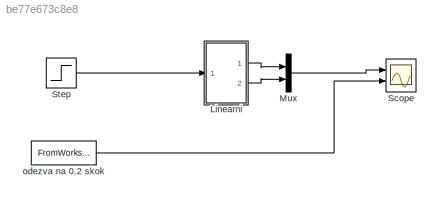
MODEL slx_be77e673c8e8
KIND model
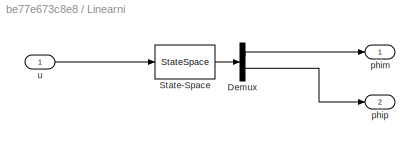
BLOCK [SubSystem] Linearni
  FunctionWithSeparateData = off
  MaskHideContents = off
  MinAlgLoopOccurrences = off
  Opaque = off
  Ports = [1, 2]
  PropExecContextOutsideSubsystem = off
  RTWSystemCode = Auto
  RequestExecContextInheritance = off
BLOCK [Demux] Linearni/Demux
  DisplayOption = bar
  Outputs = 2
  Ports = [1, 2]
BLOCK [StateSpace] Linearni/State-Space
  A = Alin
  B = Blin
  C = Clin
  D = Dlin
BLOCK [Outport] Linearni/phim
  IconDisplay = Port number
BLOCK [Outport] Linearni/phip
  IconDisplay = Port number
  Port = 2
BLOCK [Inport] Linearni/u
  IconDisplay = Port number
BLOCK [Mux] Mux
  DisplayOption = bar
  Inputs = 2
  Ports = [2, 1]
BLOCK [Scope] Scope
  Floating = off
  NumInputPorts = 2
  Ports = [2]
  ShowLegends = off
  YMax = 5~5
  YMin = -5~-5
BLOCK [Step] Step
  After = -0.02
  SampleTime = 0
BLOCK [FromWorkspace] odezva na 0,2 skok
  SampleTime = 0
  VariableName = phim_struct
  ZeroCross = on
LINE Linearni/Demux:1 -> Linearni/phim:1
LINE Linearni/Demux:2 -> Linearni/phip:1
LINE Linearni/State-Space:1 -> Linearni/Demux:1
LINE Linearni/u:1 -> Linearni/State-Space:1
LINE Linearni:1 -> Mux:1
LINE Linearni:2 -> Mux:2
LINE Mux:1 -> Scope:1
LINE Step:1 -> Linearni:1
LINE odezva na 0,2 skok:1 -> Scope:2
